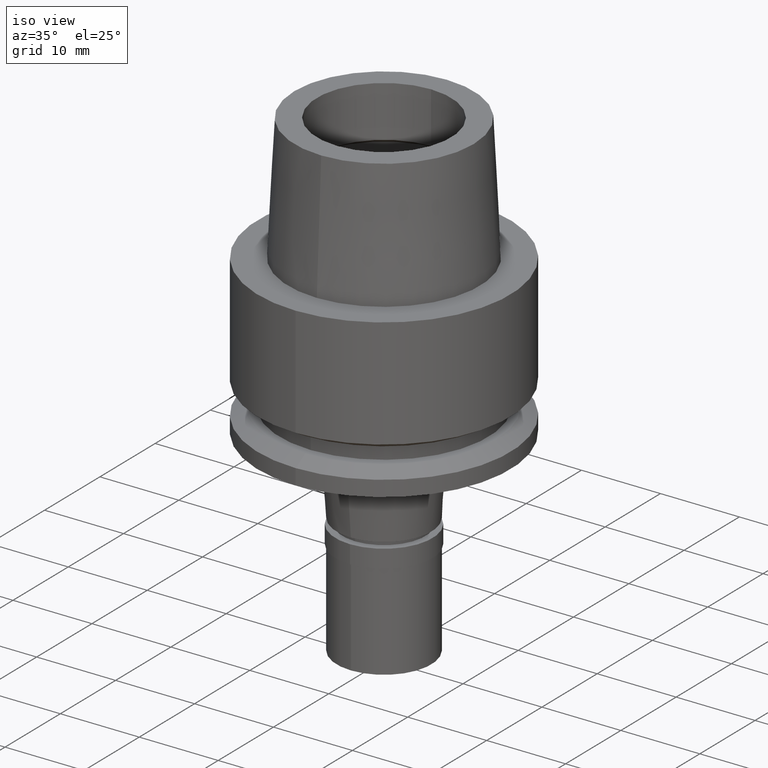
[diagram: clean part render]
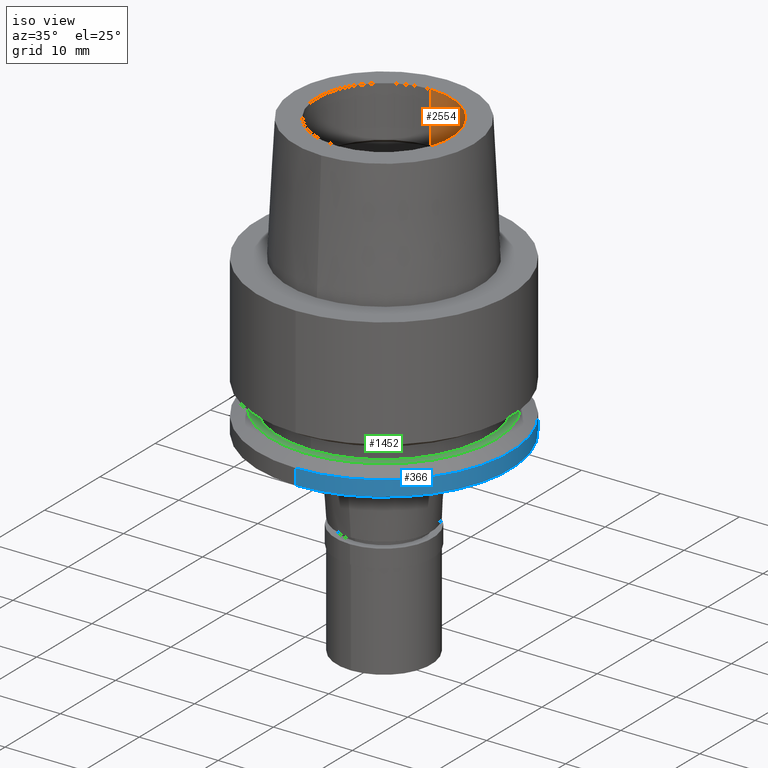
[diagram: same view with three faces highlighted in distinct colors, each labeled with its STEP entity id]
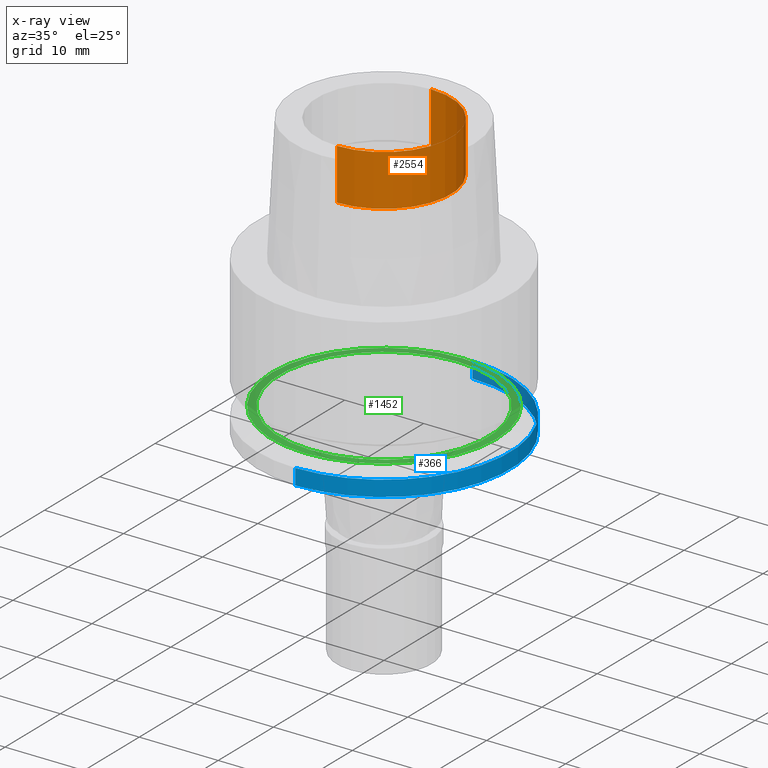
[diagram: x-ray of the same camera — body ghosted, the three highlighted faces saturated]
A machine part, iso view with three faces highlighted in distinct colors.
The next image is the same camera in x-ray (body ghosted, the three faces saturated) — at least one of them is partly hidden behind the body in this view.
Their STEP definitions:

[orange] entity #2554 — the highlighted cylindrical surface (partial cylindrical patch) has radius 8.5 mm, axis along (0, 0, -1).
#134 = AXIS2_PLACEMENT_3D ( 'NONE', #1341, #2178, #2355 ) ;
#158 = DIRECTION ( 'NONE',  ( 0.0000000000000000000, 0.0000000000000000000, -1.000000000000000000 ) ) ;
#241 = EDGE_CURVE ( 'NONE', #2128, #244, #1874, .T. ) ;
#244 = VERTEX_POINT ( 'NONE', #1254 ) ;
#298 = CARTESIAN_POINT ( 'NONE',  ( 0.0000000000000000000, 8.500000000000000000, 9.497350269190000915 ) ) ;
#416 = DIRECTION ( 'NONE',  ( 0.0000000000000000000, 0.0000000000000000000, 1.000000000000000000 ) ) ;
#422 = CIRCLE ( 'NONE', #2652, 8.500000000000000000 ) ;
#482 = VECTOR ( 'NONE', #416, 1000.000000000000000 ) ;
#514 = CYLINDRICAL_SURFACE ( 'NONE', #134, 8.500000000000000000 ) ;
#539 = CARTESIAN_POINT ( 'NONE',  ( 0.0000000000000000000, -8.500000000000000000, 9.497350269190000915 ) ) ;
#576 = CARTESIAN_POINT ( 'NONE',  ( 0.0000000000000000000, 0.0000000000000000000, 9.497350269190000915 ) ) ;
#671 = CIRCLE ( 'NONE', #2270, 8.500000000000000000 ) ;
#685 = VERTEX_POINT ( 'NONE', #539 ) ;
#695 = DIRECTION ( 'NONE',  ( 0.0000000000000000000, 0.0000000000000000000, 1.000000000000000000 ) ) ;
#1117 = LINE ( 'NONE', #1356, #1646 ) ;
#1122 = EDGE_CURVE ( 'NONE', #2128, #685, #671, .T. ) ;
#1254 = CARTESIAN_POINT ( 'NONE',  ( 0.0000000000000000000, 8.500000000000000000, 16.00000000000000000 ) ) ;
#1331 = CARTESIAN_POINT ( 'NONE',  ( 0.0000000000000000000, -8.500000000000000000, 16.00000000000000000 ) ) ;
#1341 = CARTESIAN_POINT ( 'NONE',  ( 0.0000000000000000000, 0.0000000000000000000, 18.84999999999999787 ) ) ;
#1356 = CARTESIAN_POINT ( 'NONE',  ( 0.0000000000000000000, -8.500000000000000000, 9.497350269190000915 ) ) ;
#1459 = CARTESIAN_POINT ( 'NONE',  ( 0.0000000000000000000, 8.500000000000000000, 9.497350269190000915 ) ) ;
#1574 = ORIENTED_EDGE ( 'NONE', *, *, #2469, .T. ) ;
#1646 = VECTOR ( 'NONE', #695, 1000.000000000000000 ) ;
#1704 = FACE_OUTER_BOUND ( 'NONE', #1905, .T. ) ;
#1732 = ORIENTED_EDGE ( 'NONE', *, *, #241, .F. ) ;
#1745 = DIRECTION ( 'NONE',  ( 0.0000000000000000000, 0.0000000000000000000, 1.000000000000000000 ) ) ;
#1874 = LINE ( 'NONE', #1459, #482 ) ;
#1905 = EDGE_LOOP ( 'NONE', ( #2428, #1574, #2690, #1732 ) ) ;
#1974 = DIRECTION ( 'NONE',  ( 0.0000000000000000000, -1.000000000000000000, 0.0000000000000000000 ) ) ;
#2105 = VERTEX_POINT ( 'NONE', #1331 ) ;
#2128 = VERTEX_POINT ( 'NONE', #298 ) ;
#2178 = DIRECTION ( 'NONE',  ( 0.0000000000000000000, 0.0000000000000000000, -1.000000000000000000 ) ) ;
#2179 = DIRECTION ( 'NONE',  ( 0.0000000000000000000, 1.000000000000000000, 0.0000000000000000000 ) ) ;
#2270 = AXIS2_PLACEMENT_3D ( 'NONE', #576, #158, #2179 ) ;
#2355 = DIRECTION ( 'NONE',  ( 0.0000000000000000000, -1.000000000000000000, 0.0000000000000000000 ) ) ;
#2412 = CARTESIAN_POINT ( 'NONE',  ( 0.0000000000000000000, 0.0000000000000000000, 16.00000000000000000 ) ) ;
#2428 = ORIENTED_EDGE ( 'NONE', *, *, #1122, .T. ) ;
#2469 = EDGE_CURVE ( 'NONE', #685, #2105, #1117, .T. ) ;
#2554 = ADVANCED_FACE ( 'NONE', ( #1704 ), #514, .F. ) ;
#2579 = EDGE_CURVE ( 'NONE', #2105, #244, #422, .T. ) ;
#2652 = AXIS2_PLACEMENT_3D ( 'NONE', #2412, #1745, #1974 ) ;
#2690 = ORIENTED_EDGE ( 'NONE', *, *, #2579, .T. ) ;

[blue] entity #366 — the highlighted cylindrical surface (partial cylindrical patch) has radius 16 mm, axis along (0, 0, -1).
#81 = VERTEX_POINT ( 'NONE', #2257 ) ;
#132 = DIRECTION ( 'NONE',  ( 0.0000000000000000000, -1.000000000000000000, 0.0000000000000000000 ) ) ;
#366 = ADVANCED_FACE ( 'NONE', ( #920 ), #720, .T. ) ;
#434 = EDGE_CURVE ( 'NONE', #1606, #754, #2301, .T. ) ;
#483 = EDGE_CURVE ( 'NONE', #754, #81, #2535, .T. ) ;
#720 = CYLINDRICAL_SURFACE ( 'NONE', #2265, 16.00000000000000000 ) ;
#754 = VERTEX_POINT ( 'NONE', #1445 ) ;
#920 = FACE_OUTER_BOUND ( 'NONE', #1346, .T. ) ;
#932 = CIRCLE ( 'NONE', #2056, 16.00000000000000000 ) ;
#933 = ORIENTED_EDGE ( 'NONE', *, *, #2438, .F. ) ;
#1016 = CARTESIAN_POINT ( 'NONE',  ( 0.0000000000000000000, 0.0000000000000000000, -18.02072594216000212 ) ) ;
#1056 = ORIENTED_EDGE ( 'NONE', *, *, #483, .T. ) ;
#1233 = CARTESIAN_POINT ( 'NONE',  ( 0.0000000000000000000, 16.00000000000000000, -18.02072594216000212 ) ) ;
#1279 = DIRECTION ( 'NONE',  ( 0.0000000000000000000, 0.0000000000000000000, 1.000000000000000000 ) ) ;
#1283 = ORIENTED_EDGE ( 'NONE', *, *, #1379, .T. ) ;
#1323 = DIRECTION ( 'NONE',  ( 0.0000000000000000000, 4.783562901008000077E-13, -1.000000000000000000 ) ) ;
#1346 = EDGE_LOOP ( 'NONE', ( #1283, #1566, #1056, #933 ) ) ;
#1379 = EDGE_CURVE ( 'NONE', #1490, #1606, #932, .T. ) ;
#1425 = DIRECTION ( 'NONE',  ( 0.0000000000000000000, -1.000000000000000000, 0.0000000000000000000 ) ) ;
#1445 = CARTESIAN_POINT ( 'NONE',  ( 0.0000000000000000000, -16.00000000000000000, -20.00000000000000000 ) ) ;
#1485 = CARTESIAN_POINT ( 'NONE',  ( 0.0000000000000000000, -16.00000000000000000, -18.02072594216000212 ) ) ;
#1490 = VERTEX_POINT ( 'NONE', #1630 ) ;
#1566 = ORIENTED_EDGE ( 'NONE', *, *, #434, .T. ) ;
#1606 = VERTEX_POINT ( 'NONE', #2402 ) ;
#1630 = CARTESIAN_POINT ( 'NONE',  ( 0.0000000000000000000, 16.00000000000000000, -18.02072594216000212 ) ) ;
#1660 = CARTESIAN_POINT ( 'NONE',  ( 0.0000000000000000000, 0.0000000000000000000, -20.00000000000000000 ) ) ;
#1842 = VECTOR ( 'NONE', #1323, 1000.000000000000000 ) ;
#1887 = DIRECTION ( 'NONE',  ( 0.0000000000000000000, -4.783562901008000077E-13, -1.000000000000000000 ) ) ;
#2014 = AXIS2_PLACEMENT_3D ( 'NONE', #1660, #1279, #1425 ) ;
#2049 = DIRECTION ( 'NONE',  ( 0.0000000000000000000, 1.000000000000000000, 0.0000000000000000000 ) ) ;
#2056 = AXIS2_PLACEMENT_3D ( 'NONE', #1016, #2471, #2049 ) ;
#2151 = LINE ( 'NONE', #1233, #1842 ) ;
#2183 = VECTOR ( 'NONE', #1887, 1000.000000000000000 ) ;
#2257 = CARTESIAN_POINT ( 'NONE',  ( 0.0000000000000000000, 16.00000000000000000, -20.00000000000000000 ) ) ;
#2265 = AXIS2_PLACEMENT_3D ( 'NONE', #2456, #2637, #132 ) ;
#2301 = LINE ( 'NONE', #1485, #2183 ) ;
#2402 = CARTESIAN_POINT ( 'NONE',  ( 0.0000000000000000000, -16.00000000000000000, -18.02072594216000212 ) ) ;
#2438 = EDGE_CURVE ( 'NONE', #1490, #81, #2151, .T. ) ;
#2456 = CARTESIAN_POINT ( 'NONE',  ( 0.0000000000000000000, 0.0000000000000000000, 18.84999999999999787 ) ) ;
#2471 = DIRECTION ( 'NONE',  ( 0.0000000000000000000, 0.0000000000000000000, -1.000000000000000000 ) ) ;
#2535 = CIRCLE ( 'NONE', #2014, 16.00000000000000000 ) ;
#2637 = DIRECTION ( 'NONE',  ( 0.0000000000000000000, 0.0000000000000000000, -1.000000000000000000 ) ) ;

[green] entity #1452 — the highlighted planar face has unit normal (0, 0, -1).
#94 = DIRECTION ( 'NONE',  ( 0.0000000000000000000, 0.0000000000000000000, 1.000000000000000000 ) ) ;
#105 = ORIENTED_EDGE ( 'NONE', *, *, #692, .F. ) ;
#160 = ORIENTED_EDGE ( 'NONE', *, *, #1692, .F. ) ;
#398 = DIRECTION ( 'NONE',  ( 0.0000000000000000000, 0.0000000000000000000, -1.000000000000000000 ) ) ;
#436 = VERTEX_POINT ( 'NONE', #1443 ) ;
#572 = PLANE ( 'NONE',  #631 ) ;
#586 = FACE_OUTER_BOUND ( 'NONE', #614, .T. ) ;
#614 = EDGE_LOOP ( 'NONE', ( #160, #2103 ) ) ;
#631 = AXIS2_PLACEMENT_3D ( 'NONE', #1396, #398, #1037 ) ;
#692 = EDGE_CURVE ( 'NONE', #436, #1730, #1926, .T. ) ;
#785 = FACE_BOUND ( 'NONE', #1902, .T. ) ;
#808 = DIRECTION ( 'NONE',  ( 0.0000000000000000000, 0.0000000000000000000, -1.000000000000000000 ) ) ;
#851 = CARTESIAN_POINT ( 'NONE',  ( 0.0000000000000000000, 0.0000000000000000000, -17.00000000000000000 ) ) ;
#1023 = EDGE_CURVE ( 'NONE', #1730, #436, #2670, .T. ) ;
#1037 = DIRECTION ( 'NONE',  ( 0.0000000000000000000, -1.000000000000000000, 0.0000000000000000000 ) ) ;
#1052 = VERTEX_POINT ( 'NONE', #2383 ) ;
#1226 = CARTESIAN_POINT ( 'NONE',  ( 0.0000000000000000000, -13.25000000000000000, -17.00000000000000000 ) ) ;
#1354 = CARTESIAN_POINT ( 'NONE',  ( 0.0000000000000000000, 0.0000000000000000000, -17.00000000000000000 ) ) ;
#1367 = AXIS2_PLACEMENT_3D ( 'NONE', #1847, #808, #2277 ) ;
#1396 = CARTESIAN_POINT ( 'NONE',  ( 0.0000000000000000000, 0.0000000000000000000, -17.00000000000000000 ) ) ;
#1443 = CARTESIAN_POINT ( 'NONE',  ( 0.0000000000000000000, 13.25000000000000000, -17.00000000000000000 ) ) ;
#1444 = AXIS2_PLACEMENT_3D ( 'NONE', #1354, #2419, #2154 ) ;
#1452 = ADVANCED_FACE ( 'NONE', ( #586, #785 ), #572, .F. ) ;
#1527 = EDGE_CURVE ( 'NONE', #1052, #1871, #2588, .T. ) ;
#1648 = CIRCLE ( 'NONE', #2001, 14.23205080756999941 ) ;
#1677 = DIRECTION ( 'NONE',  ( 0.0000000000000000000, -1.000000000000000000, 0.0000000000000000000 ) ) ;
#1692 = EDGE_CURVE ( 'NONE', #1871, #1052, #1648, .T. ) ;
#1730 = VERTEX_POINT ( 'NONE', #1226 ) ;
#1760 = AXIS2_PLACEMENT_3D ( 'NONE', #851, #94, #1677 ) ;
#1794 = DIRECTION ( 'NONE',  ( 0.0000000000000000000, 0.0000000000000000000, -1.000000000000000000 ) ) ;
#1812 = CARTESIAN_POINT ( 'NONE',  ( 0.0000000000000000000, 0.0000000000000000000, -17.00000000000000000 ) ) ;
#1847 = CARTESIAN_POINT ( 'NONE',  ( 0.0000000000000000000, 0.0000000000000000000, -17.00000000000000000 ) ) ;
#1871 = VERTEX_POINT ( 'NONE', #2327 ) ;
#1902 = EDGE_LOOP ( 'NONE', ( #105, #2674 ) ) ;
#1926 = CIRCLE ( 'NONE', #1444, 13.25000000000000000 ) ;
#2001 = AXIS2_PLACEMENT_3D ( 'NONE', #1812, #1794, #2623 ) ;
#2103 = ORIENTED_EDGE ( 'NONE', *, *, #1527, .F. ) ;
#2154 = DIRECTION ( 'NONE',  ( 0.0000000000000000000, 1.000000000000000000, 0.0000000000000000000 ) ) ;
#2277 = DIRECTION ( 'NONE',  ( 0.0000000000000000000, -1.000000000000000000, 0.0000000000000000000 ) ) ;
#2327 = CARTESIAN_POINT ( 'NONE',  ( 0.0000000000000000000, 14.23205080756999941, -17.00000000000000000 ) ) ;
#2383 = CARTESIAN_POINT ( 'NONE',  ( 0.0000000000000000000, -14.23205080756999941, -17.00000000000000000 ) ) ;
#2419 = DIRECTION ( 'NONE',  ( 0.0000000000000000000, 0.0000000000000000000, 1.000000000000000000 ) ) ;
#2588 = CIRCLE ( 'NONE', #1367, 14.23205080756999941 ) ;
#2623 = DIRECTION ( 'NONE',  ( 0.0000000000000000000, 1.000000000000000000, 0.0000000000000000000 ) ) ;
#2670 = CIRCLE ( 'NONE', #1760, 13.25000000000000000 ) ;
#2674 = ORIENTED_EDGE ( 'NONE', *, *, #1023, .F. ) ;